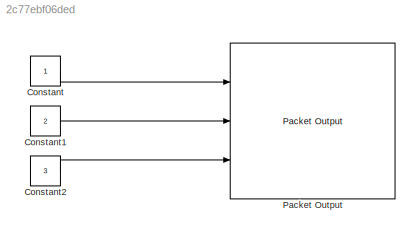
MODEL slx_2c77ebf06ded
KIND model
CONFIG AbsTol = auto
CONFIG FixedStep = auto
CONFIG MaxStep = auto
CONFIG MinStep = auto
CONFIG RelTol = 1e-3
CONFIG SampleTimeConstraint = Unconstrained
CONFIG Solver = ode45
CONFIG SolverMode = Auto
CONFIG SolverName = ode45
CONFIG StartTime = 0.0
CONFIG StopTime = 10.0
BLOCK [Constant] Constant
BLOCK [Constant] Constant1
  Value = 2
BLOCK [Constant] Constant2
  Value = 3
BLOCK [Reference] Packet Output  REF=sldrtlib/Packet Output
  AttributesFormatString = Standard Devices\nUDP Protocol [1F90h]
  ByteOrder = 1
  DataTypes = {'1*double','1*double','1*double'}
  DrvAddress = 8080
  DrvName = Standard_Devices/UDP_Protocol
  DrvOptions = [2130706433 8080]
  FinalValue = []
  InitialValue = []
  MaxMissedTicks = 10
  PacketID = 1
  PacketSize = 24
  Ports = [3]
  SampleTime = 0.01
  ShowError = off
  ShowMissedTicks = off
  ShowReady = off
  SourceBlock = sldrtlib/Packet Output
  SourceType = Simulink Desktop Real-Time Packet Output
  YieldWhenWaiting = off
LINE Constant1:1 -> Packet Output:2
LINE Constant2:1 -> Packet Output:3
LINE Constant:1 -> Packet Output:1
